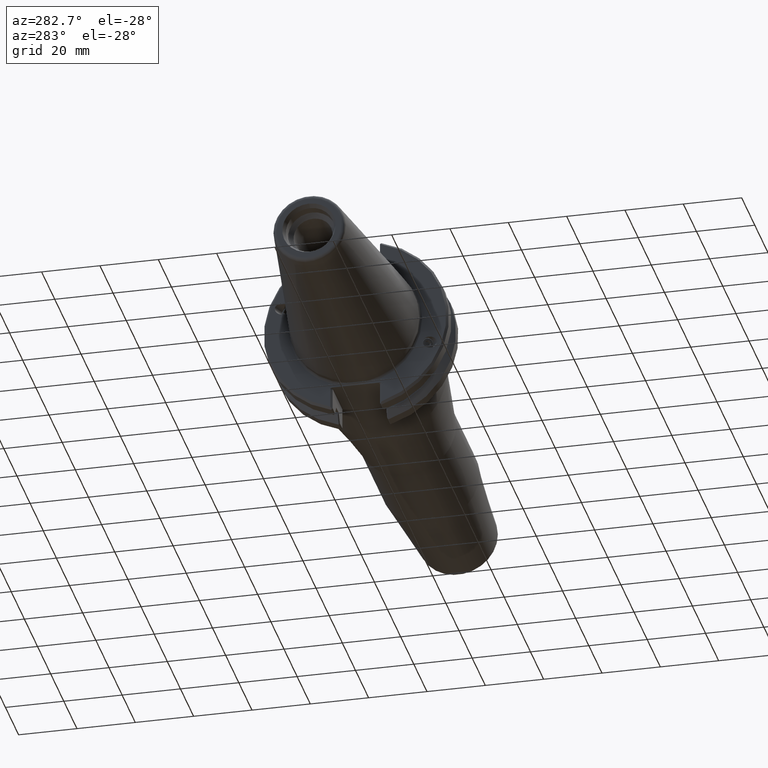
[diagram: clean part render]
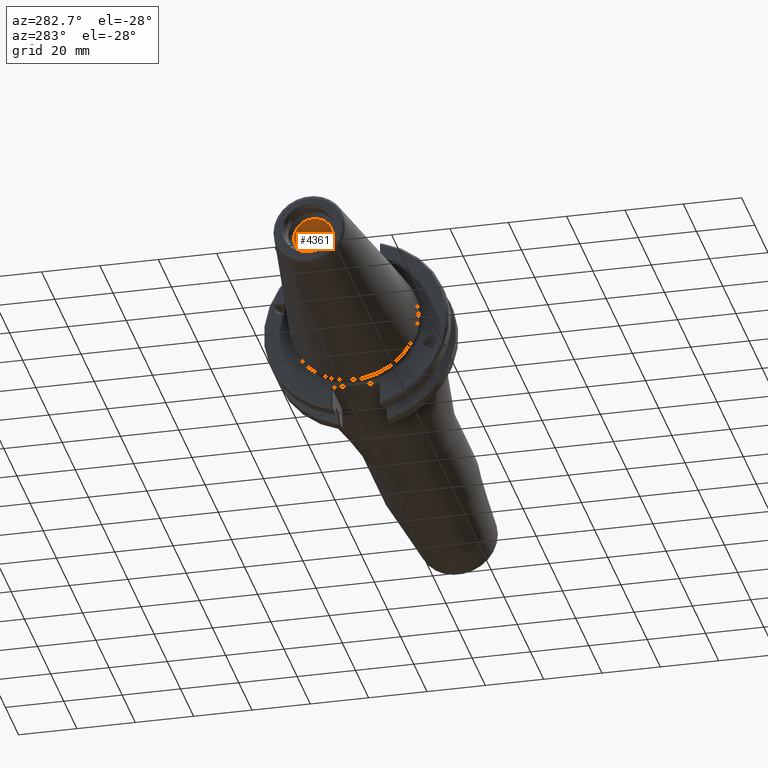
[diagram: same view with one face highlighted and labeled with its STEP entity id]
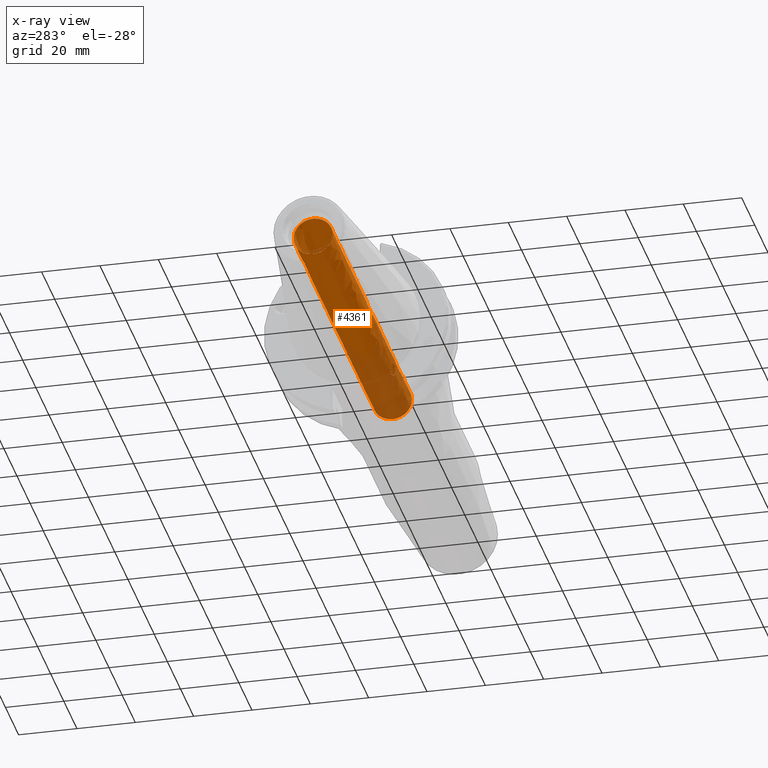
[diagram: x-ray of the same camera — body ghosted, the highlighted face saturated]
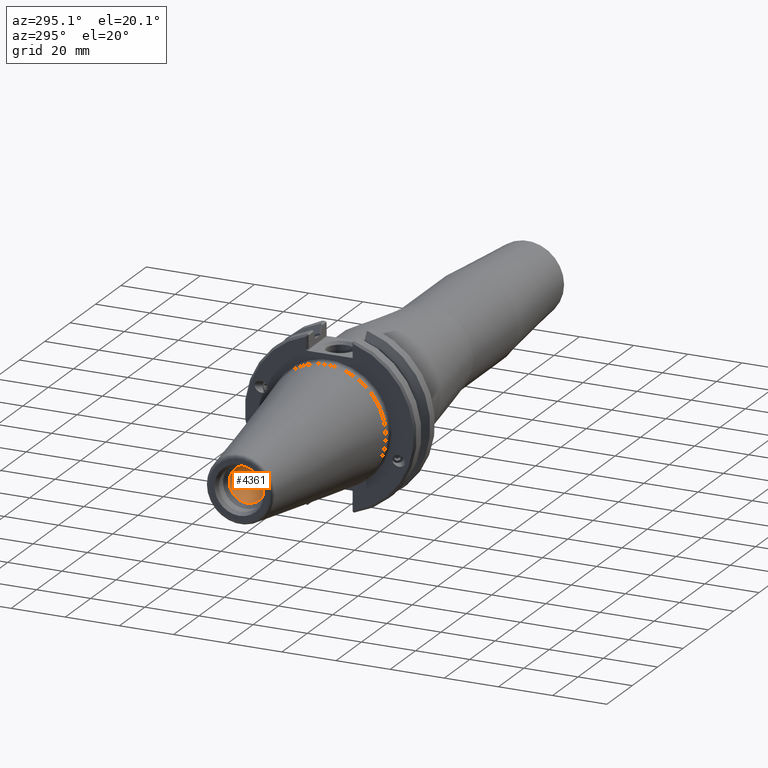
[diagram: same view with one face highlighted and labeled with its STEP entity id]
A machine part, auxiliary view. The second image highlights one B-rep face of the part: STEP entity #4361.
The next image is the same camera in x-ray: the body ghosted, the highlighted face saturated — about 38% of this face is hidden behind the body in this view.
A second angle (auxiliary view) of the same face is appended — the face is thin or edge-on in the first view.
In plain terms, the highlighted face is a freeform B-spline surface patch.
Its self-contained STEP definition (entity closure, byte-faithful):
#166=CARTESIAN_POINT('',(32.471849867467988,-5.530818386450406,-3.768946588385424));
#167=VERTEX_POINT('',#166);
#168=CARTESIAN_POINT('',(32.471849867467995,-5.530818386450407,-3.768946588385424));
#169=CARTESIAN_POINT('',(32.885832995321678,-5.530818386450407,-3.768946588385424));
#170=CARTESIAN_POINT('',(33.349794450932251,-5.563699459490496,-3.723069050991570));
#171=CARTESIAN_POINT('',(33.765260209273706,-5.641817186800457,-3.600667888145612));
#172=CARTESIAN_POINT('',(33.941010817864878,-5.674862601111595,-3.548889664716751));
#173=CARTESIAN_POINT('',(34.108167463368233,-5.715514736191694,-3.483715015754937));
#174=CARTESIAN_POINT('',(34.259895934768402,-5.762325198061074,-3.404485089083284));
#175=CARTESIAN_POINT('',(34.372620644468746,-5.797102426596173,-3.345622237561590));
#176=CARTESIAN_POINT('',(34.478535473700624,-5.835546683519191,-3.278669902818949));
#177=CARTESIAN_POINT('',(34.578285350669383,-5.879268063686190,-3.198299148816389));
#178=CARTESIAN_POINT('',(34.775830408625666,-5.965854060997483,-3.039132584005498));
#179=CARTESIAN_POINT('',(34.933945960698424,-6.069945902072223,-2.830942971501915));
#180=CARTESIAN_POINT('',(35.006348745703868,-6.167839163855254,-2.598590090570909));
#181=CARTESIAN_POINT('',(35.078875483660980,-6.265900018069226,-2.365839423485450));
#182=CARTESIAN_POINT('',(35.066487229991715,-6.355533829520422,-2.112612971455610));
#183=CARTESIAN_POINT('',(34.971940582330205,-6.424761157588072,-1.875461137413299));
#184=CARTESIAN_POINT('',(34.881711825174349,-6.490826913775723,-1.649139889943180));
#185=CARTESIAN_POINT('',(34.716568675384046,-6.537805185083642,-1.441882609290063));
#186=CARTESIAN_POINT('',(34.522093206011689,-6.569251061300712,-1.280566633799073));
#187=CARTESIAN_POINT('',(34.378983955964024,-6.592391233051115,-1.161858560499494));
#188=CARTESIAN_POINT('',(34.225876610854236,-6.607651268922319,-1.067955582561718));
#189=CARTESIAN_POINT('',(34.056426970259864,-6.619700633342930,-0.987154463556344));
#190=CARTESIAN_POINT('',(33.706523199794908,-6.644581878459117,-0.820304796017379));
#191=CARTESIAN_POINT('',(33.298835582378572,-6.653635743489513,-0.724865149534118));
#192=CARTESIAN_POINT('',(32.904065149508995,-6.657463987616047,-0.687810776009981));
#193=CARTESIAN_POINT('',(32.744037989541560,-6.659015833915118,-0.672790131945184));
#194=CARTESIAN_POINT('',(32.587903260191140,-6.659584904240082,-0.666963723988320));
#195=CARTESIAN_POINT('',(32.435421772960346,-6.659471269705223,-0.668096413678969));
#196=CARTESIAN_POINT('',(31.815269075501789,-6.659009110235267,-0.672703140566256));
#197=CARTESIAN_POINT('',(31.118742651155578,-6.649765889768569,-0.799926204905660));
#198=CARTESIAN_POINT('',(30.522612955464265,-6.609948705314420,-1.050470619823431));
#199=CARTESIAN_POINT('',(30.344776097753648,-6.598070479791703,-1.125212797218655));
#200=CARTESIAN_POINT('',(30.175719026926068,-6.583225812787445,-1.210742733387041));
#201=CARTESIAN_POINT('',(30.020602798999963,-6.563829076958269,-1.308074255719889));
#202=CARTESIAN_POINT('',(29.907977713974887,-6.549745708305116,-1.378743657141766));
#203=CARTESIAN_POINT('',(29.794441022644968,-6.532178397928347,-1.461053133721227));
#204=CARTESIAN_POINT('',(29.692080750422960,-6.510005123065062,-1.553944563897520));
#205=CARTESIAN_POINT('',(29.535724220285626,-6.476135182665868,-1.695837325479459));
#206=CARTESIAN_POINT('',(29.406296076888786,-6.431382104000685,-1.862422566107379));
#207=CARTESIAN_POINT('',(29.342949094992907,-6.373127789762060,-2.044052980077218));
#208=CARTESIAN_POINT('',(29.303358390234855,-6.336719909119934,-2.157568665897610));
#209=CARTESIAN_POINT('',(29.290371482579602,-6.293862760368914,-2.279836788468401));
#210=CARTESIAN_POINT('',(29.308405620214458,-6.249361284420499,-2.395911923837387));
#211=CARTESIAN_POINT('',(29.350866472148716,-6.144583855116126,-2.669207450129986));
#212=CARTESIAN_POINT('',(29.556236317116980,-6.033884767649893,-2.902759148006534));
#213=CARTESIAN_POINT('',(29.800402844213387,-5.943225552437527,-3.077820729485989));
#214=CARTESIAN_POINT('',(29.976556944103848,-5.877819402616654,-3.204119021383870));
#215=CARTESIAN_POINT('',(30.162125784155425,-5.824230014749396,-3.298892687795157));
#216=CARTESIAN_POINT('',(30.364721347108699,-5.775129334428298,-3.382719553942621));
#217=CARTESIAN_POINT('',(30.956226746302804,-5.631773196264842,-3.627463531554717));
#218=CARTESIAN_POINT('',(31.669737592902703,-5.543761333018638,-3.749938761855596));
#219=CARTESIAN_POINT('',(32.315082730372268,-5.532226667824571,-3.766879146695661));
#220=CARTESIAN_POINT('',(32.367833461873616,-5.531283820360041,-3.768263859526584));
#221=CARTESIAN_POINT('',(32.420123826504849,-5.530818386450406,-3.768946588385424));
#222=CARTESIAN_POINT('',(32.471849867467995,-5.530818386450406,-3.768946588385424));
#223=B_SPLINE_CURVE_WITH_KNOTS('',3,(#168,#169,#170,#171,#172,#173,#174,#175,#176,#177,#178,#179,#180,#181,#182,#183,#184,#185,#186,#187,#188,#189,#190,#191,#192,#193,#194,#195,#196,#197,#198,#199,#200,#201,#202,#203,#204,#205,#206,#207,#208,#209,#210,#211,#212,#213,#214,#215,#216,#217,#218,#219,#220,#221,#222),.UNSPECIFIED.,.T.,.U.,(4,3,3,3,3,3,3,3,3,3,3,3,3,3,3,3,3,3,4),(0.0,0.124194938356104,0.176731965925269,0.215763672543032,0.293062221476118,0.370493104867041,0.444387764769272,0.498764850965620,0.611050409201453,0.656567341306077,0.841687835192627,0.896912809168205,0.937009950986726,0.998258810794082,1.036538227631747,1.126665999936880,1.191688739926438,1.381531504563335,1.397049316852278),.UNSPECIFIED.);
#224=EDGE_CURVE('',#167,#167,#223,.T.);
#237=CARTESIAN_POINT('',(32.471849867467988,6.659484859425110,0.667960939791934));
#238=VERTEX_POINT('',#237);
#239=CARTESIAN_POINT('',(32.471849867467995,6.659484859425110,0.667960939791937));
#240=CARTESIAN_POINT('',(31.889745985446211,6.659484859425110,0.667960939791935));
#241=CARTESIAN_POINT('',(31.236476675917569,6.651380246520129,0.776519641240543));
#242=CARTESIAN_POINT('',(30.660715951205255,6.618486090364834,0.995264930381467));
#243=CARTESIAN_POINT('',(30.468175167275444,6.607485919041903,1.068415785666344));
#244=CARTESIAN_POINT('',(30.284170979699166,6.593489324946380,1.153585265973508));
#245=CARTESIAN_POINT('',(30.114481584108891,6.574836053648106,1.251575518156618));
#246=CARTESIAN_POINT('',(30.007098703054790,6.563031886356892,1.313585731334863));
#247=CARTESIAN_POINT('',(29.903883051503712,6.549315616625575,1.381258665427748));
#248=CARTESIAN_POINT('',(29.803637441007357,6.531729007651238,1.459940608589058));
#249=CARTESIAN_POINT('',(29.612559277171897,6.498207171290826,1.609916264897876));
#250=CARTESIAN_POINT('',(29.444009683182902,6.451422703363149,1.794634778079083));
#251=CARTESIAN_POINT('',(29.359383384229702,6.386850352282576,2.000763101306084));
#252=CARTESIAN_POINT('',(29.313256982107930,6.351654553001103,2.113115384738841));
#253=CARTESIAN_POINT('',(29.292244727964135,6.310304794484447,2.234025184522390));
#254=CARTESIAN_POINT('',(29.303007405990208,6.265984421071468,2.352094735526115));
#255=CARTESIAN_POINT('',(29.322361457355871,6.186285039421089,2.564414025326573));
#256=CARTESIAN_POINT('',(29.439729413324365,6.102079298577930,2.755078342621430));
#257=CARTESIAN_POINT('',(29.602301537545124,6.025539235374428,2.913380739444015));
#258=CARTESIAN_POINT('',(29.710599363675751,5.974551881321133,3.018834276016336));
#259=CARTESIAN_POINT('',(29.838630059342670,5.926972458970823,3.110218687792779));
#260=CARTESIAN_POINT('',(29.967734731757094,5.885595229105558,3.186640740518125));
#261=CARTESIAN_POINT('',(30.091123524170975,5.846049902580750,3.259679342632395));
#262=CARTESIAN_POINT('',(30.219277891907588,5.810573831623231,3.322122261287266));
#263=CARTESIAN_POINT('',(30.355958707149437,5.777259083634887,3.379080923943400));
#264=CARTESIAN_POINT('',(30.689920415269246,5.695858851099825,3.518251971754345));
#265=CARTESIAN_POINT('',(31.063103903138355,5.631348380870522,3.617831525119832));
#266=CARTESIAN_POINT('',(31.441332076457282,5.589168105985833,3.681862340315123));
#267=CARTESIAN_POINT('',(31.737741806067774,5.556112282132848,3.732041988362577));
#268=CARTESIAN_POINT('',(32.037299990805629,5.536935535383468,3.759964033012679));
#269=CARTESIAN_POINT('',(32.323169312331629,5.532085804776675,3.767086016882067));
#270=CARTESIAN_POINT('',(32.469549227923196,5.529602491236507,3.770732841914150));
#271=CARTESIAN_POINT('',(32.612453113582681,5.530595344869066,3.769285331673225));
#272=CARTESIAN_POINT('',(32.762310769074993,5.535818587461465,3.761598460324567));
#273=CARTESIAN_POINT('',(33.188637994148266,5.550678092055920,3.739730224625811));
#274=CARTESIAN_POINT('',(33.640986960948979,5.603741374614589,3.664061497778528));
#275=CARTESIAN_POINT('',(34.026557795527111,5.698097235333704,3.510925562680358));
#276=CARTESIAN_POINT('',(34.167231344311254,5.732522488972153,3.455054699262465));
#277=CARTESIAN_POINT('',(34.296963024270553,5.771221322625864,3.390569936269747));
#278=CARTESIAN_POINT('',(34.418880124897562,5.815627578610925,3.312610190906868));
#279=CARTESIAN_POINT('',(34.621300803326250,5.889355910540947,3.183172528221953));
#280=CARTESIAN_POINT('',(34.806296123632265,5.983424780235165,3.007633064264679));
#281=CARTESIAN_POINT('',(34.920403435550149,6.079111499791817,2.799877458586160));
#282=CARTESIAN_POINT('',(35.033577535363882,6.174015657710694,2.593820955644052));
#283=CARTESIAN_POINT('',(35.076780985435818,6.268163566884745,2.359046480970778));
#284=CARTESIAN_POINT('',(35.040993059131182,6.346037802022933,2.126667492885511));
#285=CARTESIAN_POINT('',(35.005159350612857,6.424011658883920,1.893991230674930));
#286=CARTESIAN_POINT('',(34.888836344736383,6.485530586516880,1.664641886150442));
#287=CARTESIAN_POINT('',(34.721666243882595,6.528588884018411,1.473919127181424));
#288=CARTESIAN_POINT('',(34.617046887772638,6.555535875955330,1.354559910808725));
#289=CARTESIAN_POINT('',(34.493502336581422,6.575704906033133,1.250069899022208));
#290=CARTESIAN_POINT('',(34.366486344890120,6.590924113214615,1.163885623180452));
#291=CARTESIAN_POINT('',(34.243093908043178,6.605709141745240,1.080160041287983));
#292=CARTESIAN_POINT('',(34.108325426864852,6.616928348184443,1.007512655686608));
#293=CARTESIAN_POINT('',(33.964842865643057,6.625765154544895,0.945593214241020));
#294=CARTESIAN_POINT('',(33.562619650146260,6.650537284612528,0.772015069078757));
#295=CARTESIAN_POINT('',(33.095069716848933,6.657358660128530,0.689048817169270));
#296=CARTESIAN_POINT('',(32.662888182532683,6.659103424300490,0.671752926654957));
#297=CARTESIAN_POINT('',(32.598283841631755,6.659364239097992,0.669167463097983));
#298=CARTESIAN_POINT('',(32.534489700300270,6.659484859425110,0.667960939791932));
#299=CARTESIAN_POINT('',(32.471849867467988,6.659484859425110,0.667960939791932));
#300=B_SPLINE_CURVE_WITH_KNOTS('',3,(#239,#240,#241,#242,#243,#244,#245,#246,#247,#248,#249,#250,#251,#252,#253,#254,#255,#256,#257,#258,#259,#260,#261,#262,#263,#264,#265,#266,#267,#268,#269,#270,#271,#272,#273,#274,#275,#276,#277,#278,#279,#280,#281,#282,#283,#284,#285,#286,#287,#288,#289,#290,#291,#292,#293,#294,#295,#296,#297,#298,#299),.UNSPECIFIED.,.T.,.U.,(4,3,3,3,3,3,3,3,3,3,3,3,3,3,3,3,3,3,3,3,4),(0.0,0.174631164606535,0.233029766471430,0.269985582690646,0.340427066075748,0.378821894029552,0.447865627438052,0.493859282696745,0.537816650582344,0.645220733866085,0.729391130285372,0.772490737677287,0.895103999981294,0.939838822196719,1.014112677264324,1.087779093076670,1.161539747699100,1.207701065742432,1.252545478210405,1.378257367002594,1.397049316852278),.UNSPECIFIED.);
#301=EDGE_CURVE('',#238,#238,#300,.T.);
#747=CARTESIAN_POINT('',(58.750199999999985,-6.692900000000001,0.0));
#748=VERTEX_POINT('',#747);
#749=CARTESIAN_POINT('',(58.750199999999985,0.0,0.0));
#750=DIRECTION('',(-1.0,0.0,0.0));
#751=DIRECTION('',(0.0,-1.0,0.0));
#752=AXIS2_PLACEMENT_3D('',#749,#750,#751);
#753=CIRCLE('',#752,6.692900000000001);
#754=EDGE_CURVE('',#748,#748,#753,.T.);
#4315=CARTESIAN_POINT('',(-61.950599999999994,-8.196168E-016,-6.692900000000001));
#4316=CARTESIAN_POINT('',(58.750199999999992,-8.196168E-016,-6.692900000000001));
#4317=CARTESIAN_POINT('',(-61.950599999999994,-6.692900000000000,-6.692899999999998));
#4318=CARTESIAN_POINT('',(58.750199999999992,-6.692900000000000,-6.692899999999998));
#4319=CARTESIAN_POINT('',(-61.950599999999994,-6.692900000000001,8.196168E-016));
#4320=CARTESIAN_POINT('',(58.750199999999992,-6.692900000000001,8.196168E-016));
#4321=CARTESIAN_POINT('',(-61.950599999999994,-6.692899999999998,6.692900000000000));
#4322=CARTESIAN_POINT('',(58.750199999999992,-6.692899999999998,6.692900000000000));
#4323=CARTESIAN_POINT('',(-61.950599999999994,8.196168E-016,6.692900000000001));
#4324=CARTESIAN_POINT('',(58.750199999999992,8.196168E-016,6.692900000000001));
#4325=CARTESIAN_POINT('',(-61.950599999999994,6.692900000000000,6.692899999999998));
#4326=CARTESIAN_POINT('',(58.750199999999992,6.692900000000000,6.692899999999998));
#4327=CARTESIAN_POINT('',(-61.950599999999994,6.692900000000001,-8.196168E-016));
#4328=CARTESIAN_POINT('',(58.750199999999992,6.692900000000001,-8.196168E-016));
#4329=CARTESIAN_POINT('',(-61.950599999999994,6.692899999999998,-6.692900000000000));
#4330=CARTESIAN_POINT('',(58.750199999999992,6.692899999999998,-6.692900000000000));
#4331=CARTESIAN_POINT('',(-61.950599999999994,-8.196168E-016,-6.692900000000001));
#4332=CARTESIAN_POINT('',(58.750199999999992,-8.196168E-016,-6.692900000000001));
#4340=(BOUNDED_SURFACE()B_SPLINE_SURFACE(1,2,((#4315,#4317,#4319,#4321,#4323,#4325,#4327,#4329,#4331),(#4316,#4318,#4320,#4322,#4324,#4326,#4328,#4330,#4332)),.UNSPECIFIED.,.F.,.T.,.U.)B_SPLINE_SURFACE_WITH_KNOTS((2,2),(3,2,2,2,3),(-3.800759013282731,14.233396584440227),(0.0,10.513182735605564,21.026365471211129,31.539548206816693,42.052730942422258),.UNSPECIFIED.)GEOMETRIC_REPRESENTATION_ITEM()RATIONAL_B_SPLINE_SURFACE(((1.0,0.707106781186548,1.0,0.707106781186548,1.0,0.707106781186548,1.0,0.707106781186548,1.0),(1.0,0.707106781186548,1.0,0.707106781186548,1.0,0.707106781186548,1.0,0.707106781186548,1.0)))REPRESENTATION_ITEM('')SURFACE());
#4341=ORIENTED_EDGE('',*,*,#224,.T.);
#4342=EDGE_LOOP('',(#4341));
#4343=FACE_OUTER_BOUND('',#4342,.T.);
#4344=ORIENTED_EDGE('',*,*,#301,.T.);
#4345=EDGE_LOOP('',(#4344));
#4346=FACE_BOUND('',#4345,.T.);
#4347=ORIENTED_EDGE('',*,*,#754,.F.);
#4348=EDGE_LOOP('',(#4347));
#4349=FACE_BOUND('',#4348,.T.);
#4350=CARTESIAN_POINT('',(-61.950599999999994,8.196168E-016,-6.692900000000001));
#4351=VERTEX_POINT('',#4350);
#4352=CARTESIAN_POINT('',(-61.950599999999994,0.0,0.0));
#4353=DIRECTION('',(1.0,0.0,0.0));
#4354=DIRECTION('',(0.0,0.0,1.0));
#4355=AXIS2_PLACEMENT_3D('',#4352,#4353,#4354);
#4356=CIRCLE('',#4355,6.692900000000001);
#4357=EDGE_CURVE('',#4351,#4351,#4356,.T.);
#4358=ORIENTED_EDGE('',*,*,#4357,.F.);
#4359=EDGE_LOOP('',(#4358));
#4360=FACE_BOUND('',#4359,.T.);
#4361=ADVANCED_FACE('',(#4343,#4346,#4349,#4360),#4340,.F.);